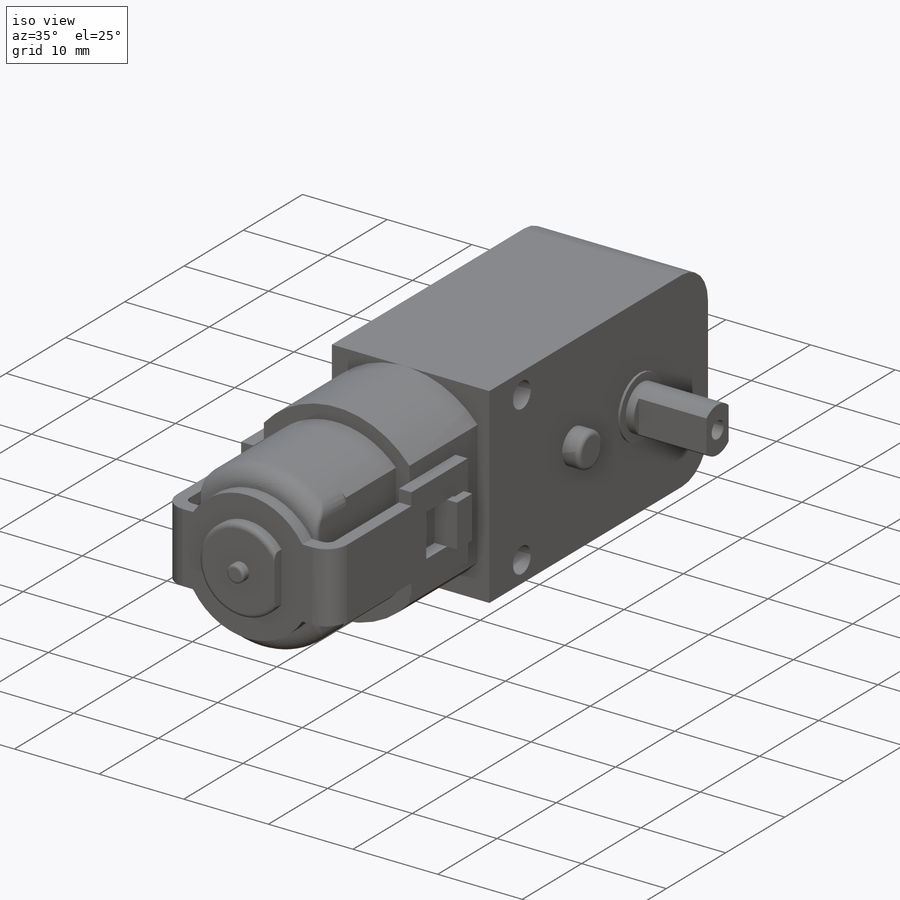
[diagram: iso view]
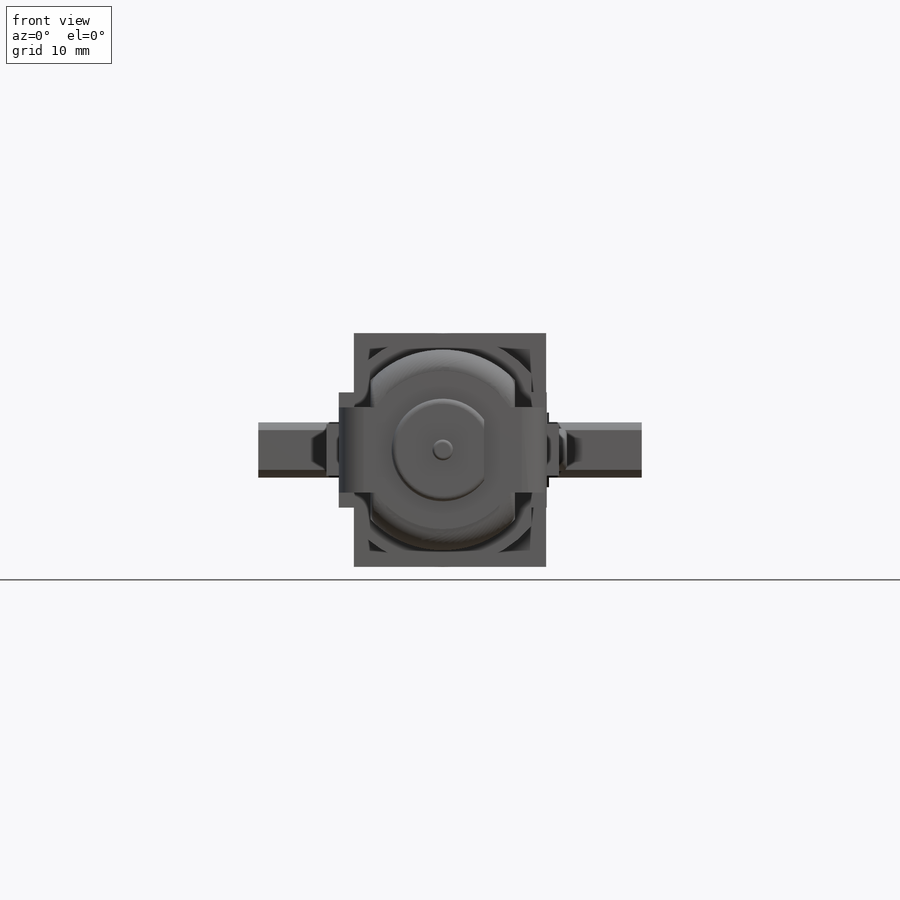
[diagram: front view]
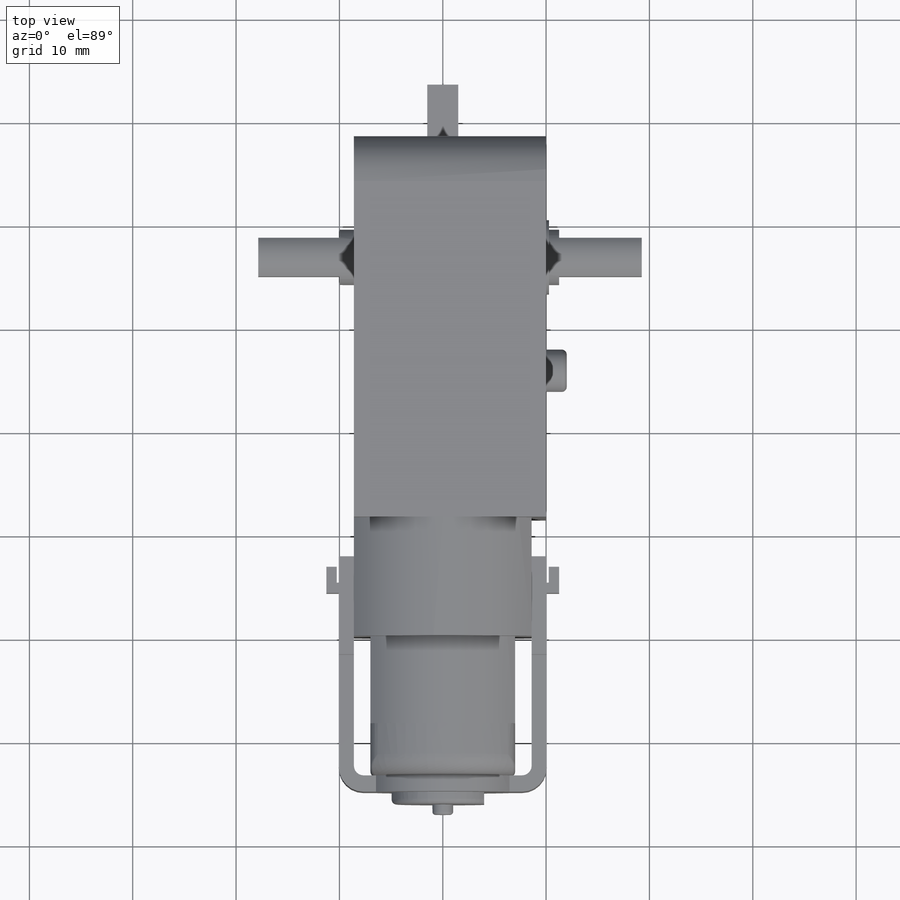
[diagram: top view]
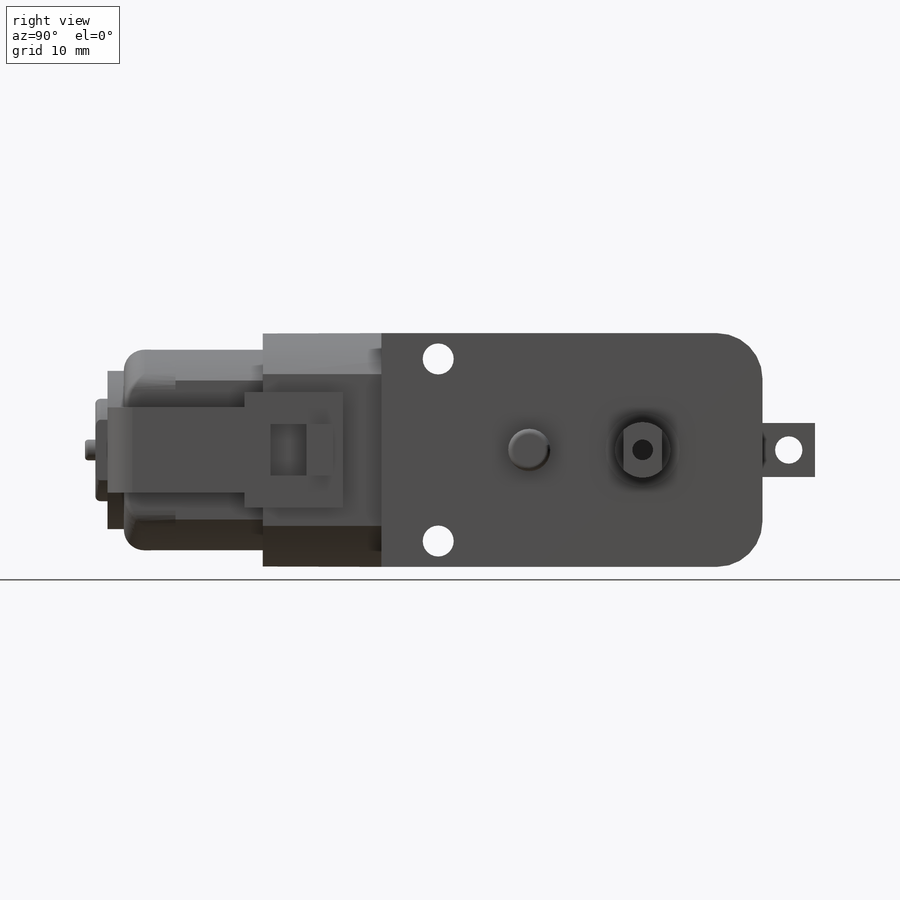
[diagram: right view]
SOLIDWORKS PART (.sldprt)
format: sldprt  version: not decoded by parser v0  size: 1,497,600 bytes
history: native  units: mm
features: sketch x25, extrude x19, cut_extrude x6, fillet x5, plane x3, material x1 (+10 scaffold rows collapsed)
feature tree (69):
  scaffold x10  (default folders/planes/origin — collapsed)
  material  "Material <sin especificar>"
  plane  "Alzado"
  plane  "Planta"
  plane  "Vista lateral"
  sketch  "Croquis1"  dims[D1=22.62mm D2=36.88mm D3=4.4mm D4=4.4mm]
  extrude  "Saliente-Extruir1"  Depth=10mm
  sketch  "Croquis2"  dims[D3=3.0mm D1=2.5mm D2=5.5mm]
  cut_extrude  "Cortar-Extruir1"  [1 undecoded]
  sketch  "Croquis3"  dims[D2=4.1mm D1=22.57mm]
  extrude  "Saliente-Extruir2"  Depth=2mm
  fillet  "Redondeo1"  Radius=0.5mm
  sketch  "Croquis4"  dims[D2=7.2mm D1=11.6mm]
  extrude  "Saliente-Extruir3"  Depth=0.28mm
  sketch  "Croquis5"  dims[D1=22.62mm]
  extrude  "Saliente-Extruir4"  Depth=11.48mm
  sketch  "Croquis6"  dims[D1=7.24mm D2=5.0mm D3=2.5mm D4=2.54mm]
  extrude  "Saliente-Extruir7"  Depth=2.66mm
  sketch  "Croquis8"  dims[c1.D1=1.0mm c1.D2=1.0mm c1.D3=1.0mm c2.D1=1.66mm]
  cut_extrude  "Cortar-Extruir3"  Depth=1.54mm
  sketch  "Croquis9"  dims[D1=7.24mm D2=5.0mm D3=2.5mm D4=2.54mm]
  extrude  "Saliente-Extruir8"  Depth=2.66mm
  sketch  "Croquis10"  dims[D1=1.0mm]
  cut_extrude  "Cortar-Extruir4"  Depth=1.54mm
  sketch  "Croquis11"  dims[D1=5.22mm D2=3.0mm]
  extrude  "Saliente-Extruir9"  Depth=5.08mm
  sketch  "Croquis12"  dims[D1=2.64mm]
  cut_extrude  "Cortar-Extruir5"  [1 undecoded]
  sketch  "Croquis13"  dims[D1=1.6mm]
  extrude  "Saliente-Extruir10"  Depth=8.44mm
  sketch  "Croquis14"
  extrude  "Saliente-Extruir11"  Depth=5mm
  fillet  "Redondeo2"  Radius=0.5mm
  fillet  "Redondeo3"  Radius=2mm
  sketch  "Croquis15"  dims[D1=9.92mm D2=4.0mm]
  extrude  "Saliente-Extruir12"  Depth=2.76mm
  fillet  "Redondeo4"  Radius=0.5mm
  sketch  "Croquis16"  dims[D1=2.0mm]
  extrude  "Saliente-Extruir13"  Depth=1mm
  fillet  "Redondeo5"  Radius=0.3mm
  sketch  "Croquis17"  dims[D1=2.7mm]
  extrude  "Saliente-Extruir14"  Depth=1.58mm
  sketch  "Croquis20"  dims[D1=2.5mm D2=1.46mm D3=3.5mm D4=2.5mm D5=1.46mm D6=1.66mm]
  extrude  "Saliente-Extruir15"  Depth=11.16mm
  sketch  "Croquis21"  dims[c1.D1=2.4mm c1.D2=0.94mm c2.D1=0.94mm c2.D2=2.4mm c3.D1=2.4mm c3.D2=0.94mm c3.D3=2.7mm]
  extrude  "Saliente-Extruir17"  Depth=8.24mm
  sketch  "Croquis22"
  extrude  "Saliente-Extruir18"  [1 undecoded]
  sketch  "Croquis23"  dims[D1=5.36mm]
  extrude  "Saliente-Extruir19"  Depth=0.98mm
  sketch  "Croquis24"  dims[D2=2.68mm D1=1.87mm]
  extrude  "Saliente-Extruir21"  Depth=8mm
  sketch  "Croquis25"  dims[D2=5.36mm D1=11.6mm]
  extrude  "Saliente-Extruir22"  Depth=1.38mm
  sketch  "Croquis26"  dims[D1=5.36mm D2=1.87mm]
  extrude  "Saliente-Extruir23"  Depth=7.88mm
  sketch  "Croquis27"  dims[D1=2.0mm]
  cut_extrude  "Cortar-Extruir6"  Depth=7mm
  sketch  "Croquis28"  dims[D1=2.0mm]
  cut_extrude  "Cortar-Extruir7"  Depth=7mm
decode coverage: 50 of 55 modeling features carry decoded parameters
note: 3 parameter values undecoded
summary: no parameter record found for 3 features
note: suppression state not decoded; provenance and decode notes live in map.json
